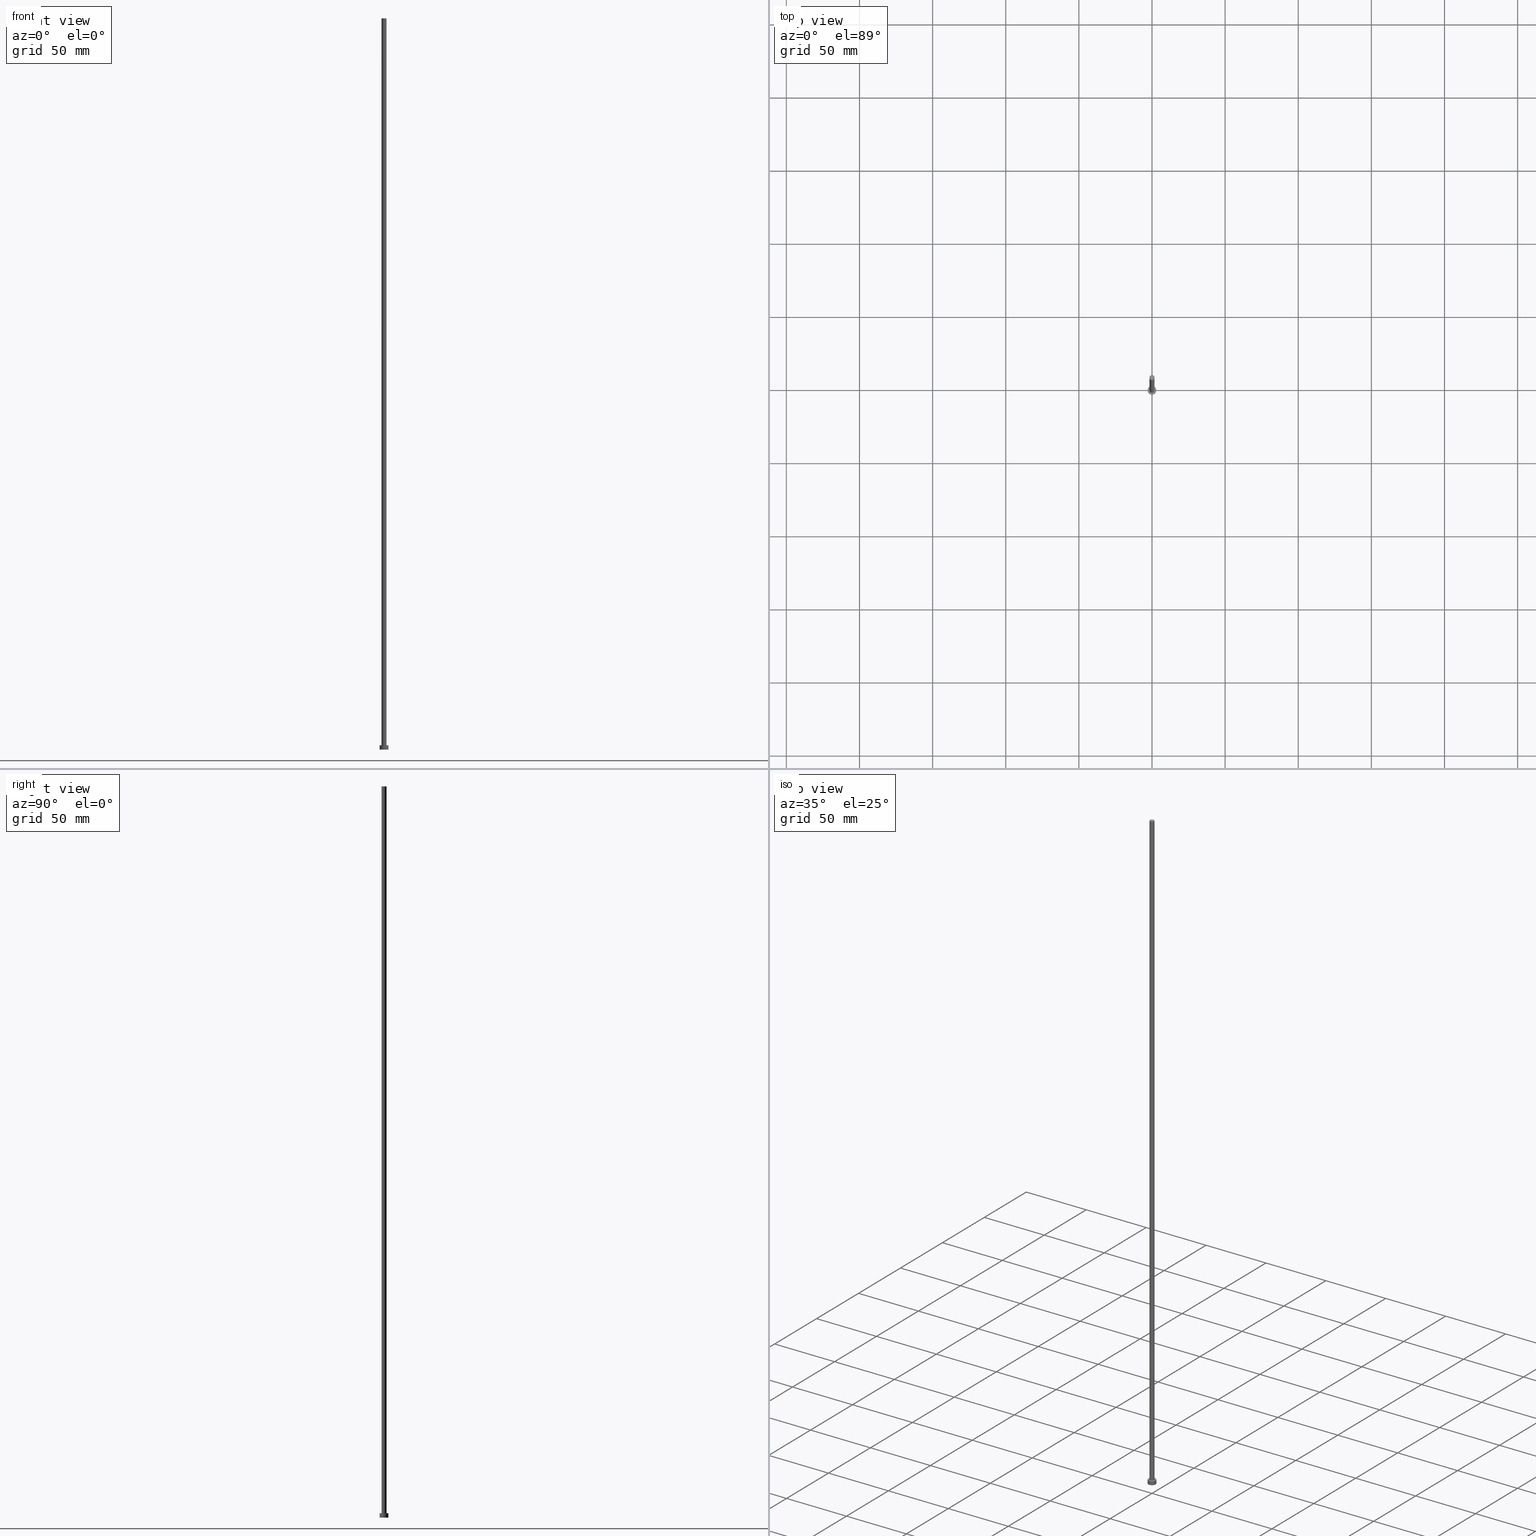
[diagram: canonical four-view strip — front | top / right | iso, engineering-drawing reading convention]
A machine part, canonical four-view strip (front | top / right | iso — engineering-drawing reading convention). The complete STEP part file that produces these views, byte-faithful:
ISO-10303-21;
HEADER;
FILE_DESCRIPTION (( 'STEP AP203' ),
    '1' );
FILE_NAME ('f785.STEP',
    '2023-02-13T16:38:28',
    ( '' ),
    ( '' ),
    'SwSTEP 2.0',
    'SolidWorks 2019',
    '' );
FILE_SCHEMA (( 'CONFIG_CONTROL_DESIGN' ));
ENDSEC;

DATA;
#1 = CIRCLE ( 'NONE', #173, 3.000000000000000444 ) ;
#2 = CARTESIAN_POINT ( 'NONE',  ( 1.750000000000000000, 2.143131898507867804E-16, 500.0000000000000000 ) ) ;
#3 = APPROVAL_ROLE ( '' ) ;
#4 = CALENDAR_DATE ( 2023, 13, 2 ) ;
#5 = PLANE ( 'NONE',  #19 ) ;
#6 = APPLICATION_PROTOCOL_DEFINITION ( 'international standard', 'config_control_design', 1994, #47 ) ;
#7 = CARTESIAN_POINT ( 'NONE',  ( -3.000000000000000444, 0.000000000000000000, 3.000000000000000000 ) ) ;
#8 = ORIENTED_EDGE ( 'NONE', *, *, #159, .T. ) ;
#9 = DIRECTION ( 'NONE',  ( 1.000000000000000000, 0.000000000000000000, -0.000000000000000000 ) ) ;
#10 =( NAMED_UNIT ( * ) SI_UNIT ( $, .STERADIAN. ) SOLID_ANGLE_UNIT ( ) );
#11 = DIRECTION ( 'NONE',  ( -0.000000000000000000, -0.000000000000000000, -1.000000000000000000 ) ) ;
#12 = SHAPE_DEFINITION_REPRESENTATION ( #148, #147 ) ;
#13 = SECURITY_CLASSIFICATION_LEVEL ( 'unclassified' ) ;
#14 = DATE_AND_TIME ( #128, #208 ) ;
#15 = DIRECTION ( 'NONE',  ( 1.000000000000000000, 0.000000000000000000, 0.000000000000000000 ) ) ;
#16 = EDGE_CURVE ( 'NONE', #37, #124, #187, .T. ) ;
#17 = VECTOR ( 'NONE', #214, 1000.000000000000000 ) ;
#18 = CIRCLE ( 'NONE', #192, 3.000000000000000444 ) ;
#19 = AXIS2_PLACEMENT_3D ( 'NONE', #79, #42, #232 ) ;
#20 = ORIENTED_EDGE ( 'NONE', *, *, #100, .F. ) ;
#21 = ORIENTED_EDGE ( 'NONE', *, *, #54, .F. ) ;
#22 = ORIENTED_EDGE ( 'NONE', *, *, #229, .F. ) ;
#23 = APPROVAL ( #101, 'NEUR�EN�' ) ;
#24 = DIRECTION ( 'NONE',  ( 0.000000000000000000, 0.000000000000000000, 1.000000000000000000 ) ) ;
#25 = ORIENTED_EDGE ( 'NONE', *, *, #113, .F. ) ;
#26 = CARTESIAN_POINT ( 'NONE',  ( 0.000000000000000000, 0.000000000000000000, 500.0000000000000000 ) ) ;
#27 = PERSON_AND_ORGANIZATION_ROLE ( 'design_supplier' ) ;
#28 = EDGE_CURVE ( 'NONE', #124, #83, #103, .T. ) ;
#29 = DIRECTION ( 'NONE',  ( 0.000000000000000000, 0.000000000000000000, 1.000000000000000000 ) ) ;
#30 = DIRECTION ( 'NONE',  ( 0.000000000000000000, 0.000000000000000000, 1.000000000000000000 ) ) ;
#31 = DIRECTION ( 'NONE',  ( 0.000000000000000000, 0.000000000000000000, 1.000000000000000000 ) ) ;
#32 = ORIENTED_EDGE ( 'NONE', *, *, #77, .F. ) ;
#33 = PERSON_AND_ORGANIZATION_ROLE ( 'design_owner' ) ;
#34 = FACE_OUTER_BOUND ( 'NONE', #238, .T. ) ;
#35 = ORIENTED_EDGE ( 'NONE', *, *, #159, .F. ) ;
#36 = CC_DESIGN_PERSON_AND_ORGANIZATION_ASSIGNMENT ( #138, #206, ( #241 ) ) ;
#37 = VERTEX_POINT ( 'NONE', #160 ) ;
#38 = CARTESIAN_POINT ( 'NONE',  ( 0.000000000000000000, 0.000000000000000000, 3.000000000000000000 ) ) ;
#39 = PERSON_AND_ORGANIZATION ( #45, #135 ) ;
#40 = VERTEX_POINT ( 'NONE', #127 ) ;
#41 = DIRECTION ( 'NONE',  ( 1.000000000000000000, 0.000000000000000000, 0.000000000000000000 ) ) ;
#42 = DIRECTION ( 'NONE',  ( 0.000000000000000000, 0.000000000000000000, 1.000000000000000000 ) ) ;
#43 = EDGE_CURVE ( 'NONE', #165, #161, #237, .T. ) ;
#44 = DIRECTION ( 'NONE',  ( 1.000000000000000000, 0.000000000000000000, 0.000000000000000000 ) ) ;
#45 = PERSON ( 'NEUR�EN�', 'NEUR�EN�', 'NEUR�EN�', ('NEUR�EN�'), ('NEUR�EN�'), ('NEUR�EN�') ) ;
#46 = DIRECTION ( 'NONE',  ( -1.000000000000000000, 0.000000000000000000, 0.000000000000000000 ) ) ;
#47 = APPLICATION_CONTEXT ( 'configuration controlled 3d designs of mechanical parts and assemblies' ) ;
#48 = LOCAL_TIME ( 17, 38, 28.00000000000000000, #120 ) ;
#49 = DIRECTION ( 'NONE',  ( 0.000000000000000000, 0.000000000000000000, 1.000000000000000000 ) ) ;
#50 = ADVANCED_FACE ( 'NONE', ( #58 ), #220, .T. ) ;
#51 = FACE_BOUND ( 'NONE', #181, .T. ) ;
#52 = CARTESIAN_POINT ( 'NONE',  ( 0.000000000000000000, 0.000000000000000000, 500.0000000000000000 ) ) ;
#53 = CALENDAR_DATE ( 2023, 13, 2 ) ;
#54 = EDGE_CURVE ( 'NONE', #143, #40, #85, .T. ) ;
#55 = AXIS2_PLACEMENT_3D ( 'NONE', #26, #60, #190 ) ;
#56 = AXIS2_PLACEMENT_3D ( 'NONE', #153, #123, #9 ) ;
#57 = ORIENTED_EDGE ( 'NONE', *, *, #43, .F. ) ;
#58 = FACE_OUTER_BOUND ( 'NONE', #224, .T. ) ;
#59 = APPROVAL_ROLE ( '' ) ;
#60 = DIRECTION ( 'NONE',  ( 0.000000000000000000, 0.000000000000000000, 1.000000000000000000 ) ) ;
#61 = AXIS2_PLACEMENT_3D ( 'NONE', #145, #63, #151 ) ;
#62 = CARTESIAN_POINT ( 'NONE',  ( -1.750000000000000000, 0.000000000000000000, 500.0000000000000000 ) ) ;
#63 = DIRECTION ( 'NONE',  ( 0.000000000000000000, 0.000000000000000000, 1.000000000000000000 ) ) ;
#64 = CARTESIAN_POINT ( 'NONE',  ( 1.750000000000000000, 2.143131898507867804E-16, 500.0000000000000000 ) ) ;
#65 = VECTOR ( 'NONE', #216, 1000.000000000000000 ) ;
#66 = CC_DESIGN_PERSON_AND_ORGANIZATION_ASSIGNMENT ( #111, #188, ( #157 ) ) ;
#67 = ADVANCED_FACE ( 'NONE', ( #51, #34 ), #212, .T. ) ;
#68 = DIRECTION ( 'NONE',  ( -0.000000000000000000, -0.000000000000000000, -1.000000000000000000 ) ) ;
#69 = CIRCLE ( 'NONE', #254, 3.000000000000000444 ) ;
#70 = UNCERTAINTY_MEASURE_WITH_UNIT (LENGTH_MEASURE( 1.000000000000000082E-05 ), #168, 'distance_accuracy_value', 'NONE');
#71 = CALENDAR_DATE ( 2023, 13, 2 ) ;
#72 = COORDINATED_UNIVERSAL_TIME_OFFSET ( 1, 0, .AHEAD. ) ;
#73 = LINE ( 'NONE', #156, #17 ) ;
#74 = LOCAL_TIME ( 17, 38, 28.00000000000000000, #72 ) ;
#75 = ORIENTED_EDGE ( 'NONE', *, *, #199, .T. ) ;
#76 = COORDINATED_UNIVERSAL_TIME_OFFSET ( 1, 0, .AHEAD. ) ;
#77 = EDGE_CURVE ( 'NONE', #170, #83, #73, .T. ) ;
#78 = DATE_AND_TIME ( #4, #132 ) ;
#79 = CARTESIAN_POINT ( 'NONE',  ( 0.000000000000000000, 0.000000000000000000, 0.000000000000000000 ) ) ;
#80 = DATE_TIME_ROLE ( 'classification_date' ) ;
#81 = EDGE_LOOP ( 'NONE', ( #22, #223, #8, #57 ) ) ;
#82 = APPROVAL_PERSON_ORGANIZATION ( #200, #118, #59 ) ;
#83 = VERTEX_POINT ( 'NONE', #218 ) ;
#84 = CARTESIAN_POINT ( 'NONE',  ( 3.000000000000000444, 3.673940397442060361E-16, 3.000000000000000000 ) ) ;
#85 = LINE ( 'NONE', #64, #253 ) ;
#86 = CC_DESIGN_PERSON_AND_ORGANIZATION_ASSIGNMENT ( #92, #33, ( #189 ) ) ;
#87 = FACE_OUTER_BOUND ( 'NONE', #149, .T. ) ;
#88 = APPROVAL_DATE_TIME ( #14, #23 ) ;
#89 = DIRECTION ( 'NONE',  ( 1.000000000000000000, 0.000000000000000000, 0.000000000000000000 ) ) ;
#90 = VECTOR ( 'NONE', #158, 1000.000000000000000 ) ;
#91 = CYLINDRICAL_SURFACE ( 'NONE', #231, 1.750000000000000000 ) ;
#92 = PERSON_AND_ORGANIZATION ( #45, #135 ) ;
#93 = CARTESIAN_POINT ( 'NONE',  ( 0.000000000000000000, 0.000000000000000000, 500.0000000000000000 ) ) ;
#94 = ORIENTED_EDGE ( 'NONE', *, *, #43, .T. ) ;
#95 = CARTESIAN_POINT ( 'NONE',  ( -3.000000000000000444, 0.000000000000000000, 0.000000000000000000 ) ) ;
#96 = CIRCLE ( 'NONE', #55, 1.750000000000000000 ) ;
#97 = AXIS2_PLACEMENT_3D ( 'NONE', #93, #30, #44 ) ;
#98 = APPLICATION_PROTOCOL_DEFINITION ( 'international standard', 'config_control_design', 1994, #197 ) ;
#99 = PERSON_AND_ORGANIZATION ( #45, #135 ) ;
#100 = EDGE_CURVE ( 'NONE', #37, #170, #1, .T. ) ;
#101 = APPROVAL_STATUS ( 'not_yet_approved' ) ;
#102 = ORIENTED_EDGE ( 'NONE', *, *, #199, .F. ) ;
#103 = CIRCLE ( 'NONE', #114, 3.000000000000000444 ) ;
#104 = EDGE_CURVE ( 'NONE', #165, #143, #96, .T. ) ;
#105 = DIRECTION ( 'NONE',  ( 0.000000000000000000, 0.000000000000000000, 1.000000000000000000 ) ) ;
#106 = CARTESIAN_POINT ( 'NONE',  ( -1.750000000000000000, 0.000000000000000000, 3.000000000000000000 ) ) ;
#107 = CARTESIAN_POINT ( 'NONE',  ( 0.000000000000000000, 0.000000000000000000, 0.000000000000000000 ) ) ;
#108 = APPROVAL_ROLE ( '' ) ;
#109 = APPROVAL ( #180, 'NEUR�EN�' ) ;
#110 = CARTESIAN_POINT ( 'NONE',  ( 0.000000000000000000, 0.000000000000000000, 3.000000000000000000 ) ) ;
#111 = PERSON_AND_ORGANIZATION ( #45, #135 ) ;
#112 = CARTESIAN_POINT ( 'NONE',  ( 0.000000000000000000, 0.000000000000000000, 3.000000000000000000 ) ) ;
#113 = EDGE_CURVE ( 'NONE', #161, #40, #207, .T. ) ;
#114 = AXIS2_PLACEMENT_3D ( 'NONE', #107, #226, #41 ) ;
#115 = MECHANICAL_CONTEXT ( 'NONE', #47, 'mechanical' ) ;
#116 = CC_DESIGN_DATE_AND_TIME_ASSIGNMENT ( #137, #140, ( #228 ) ) ;
#117 = AXIS2_PLACEMENT_3D ( 'NONE', #110, #24, #126 ) ;
#118 = APPROVAL ( #122, 'NEUR�EN�' ) ;
#119 = PERSON_AND_ORGANIZATION ( #45, #135 ) ;
#120 = COORDINATED_UNIVERSAL_TIME_OFFSET ( 1, 0, .AHEAD. ) ;
#121 = ORIENTED_EDGE ( 'NONE', *, *, #113, .T. ) ;
#122 = APPROVAL_STATUS ( 'not_yet_approved' ) ;
#123 = DIRECTION ( 'NONE',  ( 0.000000000000000000, 0.000000000000000000, 1.000000000000000000 ) ) ;
#124 = VERTEX_POINT ( 'NONE', #95 ) ;
#125 = AXIS2_PLACEMENT_3D ( 'NONE', #141, #31, #176 ) ;
#126 = DIRECTION ( 'NONE',  ( 1.000000000000000000, 0.000000000000000000, 0.000000000000000000 ) ) ;
#127 = CARTESIAN_POINT ( 'NONE',  ( 1.750000000000000000, 2.143131898507867804E-16, 3.000000000000000000 ) ) ;
#128 = CALENDAR_DATE ( 2023, 13, 2 ) ;
#129 = CC_DESIGN_APPROVAL ( #109, ( #241 ) ) ;
#130 = COORDINATED_UNIVERSAL_TIME_OFFSET ( 1, 0, .AHEAD. ) ;
#131 = ADVANCED_FACE ( 'NONE', ( #202 ), #215, .T. ) ;
#132 = LOCAL_TIME ( 17, 38, 28.00000000000000000, #76 ) ;
#133 = AXIS2_PLACEMENT_3D ( 'NONE', #210, #49, #233 ) ;
#134 =( GEOMETRIC_REPRESENTATION_CONTEXT ( 3 ) GLOBAL_UNCERTAINTY_ASSIGNED_CONTEXT ( ( #70 ) ) GLOBAL_UNIT_ASSIGNED_CONTEXT ( ( #168, #227, #10 ) ) REPRESENTATION_CONTEXT ( 'NONE', 'WORKASPACE' ) );
#135 = ORGANIZATION ( 'NEUR�EN�', 'NEUR�EN�', '' ) ;
#136 = DIRECTION ( 'NONE',  ( -1.000000000000000000, 0.000000000000000000, 0.000000000000000000 ) ) ;
#137 = DATE_AND_TIME ( #53, #74 ) ;
#138 = PERSON_AND_ORGANIZATION ( #45, #135 ) ;
#139 = EDGE_LOOP ( 'NONE', ( #183, #244 ) ) ;
#140 = DATE_TIME_ROLE ( 'creation_date' ) ;
#141 = CARTESIAN_POINT ( 'NONE',  ( 0.000000000000000000, 0.000000000000000000, 3.000000000000000000 ) ) ;
#142 = ORIENTED_EDGE ( 'NONE', *, *, #16, .F. ) ;
#143 = VERTEX_POINT ( 'NONE', #2 ) ;
#144 = ORIENTED_EDGE ( 'NONE', *, *, #100, .T. ) ;
#145 = CARTESIAN_POINT ( 'NONE',  ( 0.000000000000000000, 0.000000000000000000, 0.000000000000000000 ) ) ;
#146 = EDGE_LOOP ( 'NONE', ( #21, #242, #94, #121 ) ) ;
#147 = ADVANCED_BREP_SHAPE_REPRESENTATION ( 'f785', ( #155, #61 ), #134 ) ;
#148 = PRODUCT_DEFINITION_SHAPE ( 'NONE', 'NONE',  #228 ) ;
#149 = EDGE_LOOP ( 'NONE', ( #102, #239, #203, #142 ) ) ;
#150 = FACE_OUTER_BOUND ( 'NONE', #182, .T. ) ;
#151 = DIRECTION ( 'NONE',  ( 1.000000000000000000, 0.000000000000000000, 0.000000000000000000 ) ) ;
#152 = EDGE_CURVE ( 'NONE', #83, #124, #18, .T. ) ;
#153 = CARTESIAN_POINT ( 'NONE',  ( 0.000000000000000000, 0.000000000000000000, 500.0000000000000000 ) ) ;
#154 = CIRCLE ( 'NONE', #97, 1.750000000000000000 ) ;
#155 = MANIFOLD_SOLID_BREP ( 'P�idat vysunut�m3', #248 ) ;
#156 = CARTESIAN_POINT ( 'NONE',  ( 3.000000000000000444, 3.673940397442060361E-16, 3.000000000000000000 ) ) ;
#157 = SECURITY_CLASSIFICATION ( '', '', #13 ) ;
#158 = DIRECTION ( 'NONE',  ( -0.000000000000000000, -0.000000000000000000, -1.000000000000000000 ) ) ;
#159 = EDGE_CURVE ( 'NONE', #40, #161, #250, .T. ) ;
#160 = CARTESIAN_POINT ( 'NONE',  ( -3.000000000000000444, 0.000000000000000000, 3.000000000000000000 ) ) ;
#161 = VERTEX_POINT ( 'NONE', #106 ) ;
#162 = ADVANCED_FACE ( 'NONE', ( #251 ), #186, .T. ) ;
#163 = APPROVAL_DATE_TIME ( #78, #109 ) ;
#164 = APPROVAL_PERSON_ORGANIZATION ( #39, #23, #108 ) ;
#165 = VERTEX_POINT ( 'NONE', #62 ) ;
#166 = ORIENTED_EDGE ( 'NONE', *, *, #16, .T. ) ;
#167 = DIRECTION ( 'NONE',  ( -1.000000000000000000, 0.000000000000000000, 0.000000000000000000 ) ) ;
#168 =( LENGTH_UNIT ( ) NAMED_UNIT ( * ) SI_UNIT ( .MILLI., .METRE. ) );
#169 = LOCAL_TIME ( 17, 38, 28.00000000000000000, #177 ) ;
#170 = VERTEX_POINT ( 'NONE', #84 ) ;
#171 = ORIENTED_EDGE ( 'NONE', *, *, #152, .F. ) ;
#172 = CARTESIAN_POINT ( 'NONE',  ( 0.000000000000000000, 0.000000000000000000, 500.0000000000000000 ) ) ;
#173 = AXIS2_PLACEMENT_3D ( 'NONE', #243, #105, #245 ) ;
#174 = PERSON_AND_ORGANIZATION ( #45, #135 ) ;
#175 = DESIGN_CONTEXT ( 'detailed design', #197, 'design' ) ;
#176 = DIRECTION ( 'NONE',  ( 1.000000000000000000, 0.000000000000000000, -0.000000000000000000 ) ) ;
#177 = COORDINATED_UNIVERSAL_TIME_OFFSET ( 1, 0, .AHEAD. ) ;
#178 = CC_DESIGN_PERSON_AND_ORGANIZATION_ASSIGNMENT ( #174, #27, ( #241 ) ) ;
#179 = CC_DESIGN_APPROVAL ( #23, ( #157 ) ) ;
#180 = APPROVAL_STATUS ( 'not_yet_approved' ) ;
#181 = EDGE_LOOP ( 'NONE', ( #25, #35 ) ) ;
#182 = EDGE_LOOP ( 'NONE', ( #185, #171 ) ) ;
#183 = ORIENTED_EDGE ( 'NONE', *, *, #104, .T. ) ;
#184 = DIRECTION ( 'NONE',  ( -0.000000000000000000, -0.000000000000000000, -1.000000000000000000 ) ) ;
#185 = ORIENTED_EDGE ( 'NONE', *, *, #28, .F. ) ;
#186 = PLANE ( 'NONE',  #56 ) ;
#187 = LINE ( 'NONE', #7, #65 ) ;
#188 = PERSON_AND_ORGANIZATION_ROLE ( 'classification_officer' ) ;
#189 = PRODUCT ( 'f785', 'f785', '', ( #115 ) ) ;
#190 = DIRECTION ( 'NONE',  ( 1.000000000000000000, 0.000000000000000000, 0.000000000000000000 ) ) ;
#191 = ADVANCED_FACE ( 'NONE', ( #150 ), #5, .F. ) ;
#192 = AXIS2_PLACEMENT_3D ( 'NONE', #205, #225, #15 ) ;
#193 = APPROVAL_PERSON_ORGANIZATION ( #99, #109, #3 ) ;
#194 = CARTESIAN_POINT ( 'NONE',  ( 0.000000000000000000, 0.000000000000000000, 3.000000000000000000 ) ) ;
#195 = CC_DESIGN_PERSON_AND_ORGANIZATION_ASSIGNMENT ( #119, #217, ( #228 ) ) ;
#196 = DIRECTION ( 'NONE',  ( -0.000000000000000000, -0.000000000000000000, -1.000000000000000000 ) ) ;
#197 = APPLICATION_CONTEXT ( 'configuration controlled 3d designs of mechanical parts and assemblies' ) ;
#198 = AXIS2_PLACEMENT_3D ( 'NONE', #112, #184, #249 ) ;
#199 = EDGE_CURVE ( 'NONE', #170, #37, #69, .T. ) ;
#200 = PERSON_AND_ORGANIZATION ( #45, #135 ) ;
#201 = PRODUCT_RELATED_PRODUCT_CATEGORY ( 'detail', '', ( #189 ) ) ;
#202 = FACE_OUTER_BOUND ( 'NONE', #146, .T. ) ;
#203 = ORIENTED_EDGE ( 'NONE', *, *, #152, .T. ) ;
#204 = CC_DESIGN_SECURITY_CLASSIFICATION ( #157, ( #241 ) ) ;
#205 = CARTESIAN_POINT ( 'NONE',  ( 0.000000000000000000, 0.000000000000000000, 0.000000000000000000 ) ) ;
#206 = PERSON_AND_ORGANIZATION_ROLE ( 'creator' ) ;
#207 = CIRCLE ( 'NONE', #133, 1.750000000000000000 ) ;
#208 = LOCAL_TIME ( 17, 38, 28.00000000000000000, #130 ) ;
#209 = CARTESIAN_POINT ( 'NONE',  ( -1.750000000000000000, 0.000000000000000000, 500.0000000000000000 ) ) ;
#210 = CARTESIAN_POINT ( 'NONE',  ( 0.000000000000000000, 0.000000000000000000, 3.000000000000000000 ) ) ;
#211 = CC_DESIGN_DATE_AND_TIME_ASSIGNMENT ( #221, #80, ( #157 ) ) ;
#212 = PLANE ( 'NONE',  #125 ) ;
#213 = CC_DESIGN_APPROVAL ( #118, ( #228 ) ) ;
#214 = DIRECTION ( 'NONE',  ( -0.000000000000000000, -0.000000000000000000, -1.000000000000000000 ) ) ;
#215 = CYLINDRICAL_SURFACE ( 'NONE', #230, 1.750000000000000000 ) ;
#216 = DIRECTION ( 'NONE',  ( -0.000000000000000000, -0.000000000000000000, -1.000000000000000000 ) ) ;
#217 = PERSON_AND_ORGANIZATION_ROLE ( 'creator' ) ;
#218 = CARTESIAN_POINT ( 'NONE',  ( 3.000000000000000444, 3.673940397442060361E-16, 0.000000000000000000 ) ) ;
#219 = ORIENTED_EDGE ( 'NONE', *, *, #28, .T. ) ;
#220 = CYLINDRICAL_SURFACE ( 'NONE', #234, 3.000000000000000444 ) ;
#221 = DATE_AND_TIME ( #71, #48 ) ;
#222 = CYLINDRICAL_SURFACE ( 'NONE', #198, 3.000000000000000444 ) ;
#223 = ORIENTED_EDGE ( 'NONE', *, *, #54, .T. ) ;
#224 = EDGE_LOOP ( 'NONE', ( #32, #20, #166, #219 ) ) ;
#225 = DIRECTION ( 'NONE',  ( 0.000000000000000000, 0.000000000000000000, 1.000000000000000000 ) ) ;
#226 = DIRECTION ( 'NONE',  ( 0.000000000000000000, 0.000000000000000000, 1.000000000000000000 ) ) ;
#227 =( NAMED_UNIT ( * ) PLANE_ANGLE_UNIT ( ) SI_UNIT ( $, .RADIAN. ) );
#228 = PRODUCT_DEFINITION ( 'NEZN�M�', '', #241, #175 ) ;
#229 = EDGE_CURVE ( 'NONE', #143, #165, #154, .T. ) ;
#230 = AXIS2_PLACEMENT_3D ( 'NONE', #52, #196, #136 ) ;
#231 = AXIS2_PLACEMENT_3D ( 'NONE', #172, #68, #46 ) ;
#232 = DIRECTION ( 'NONE',  ( 1.000000000000000000, 0.000000000000000000, -0.000000000000000000 ) ) ;
#233 = DIRECTION ( 'NONE',  ( 1.000000000000000000, 0.000000000000000000, 0.000000000000000000 ) ) ;
#234 = AXIS2_PLACEMENT_3D ( 'NONE', #38, #11, #167 ) ;
#235 = CALENDAR_DATE ( 2023, 13, 2 ) ;
#236 = DATE_AND_TIME ( #235, #169 ) ;
#237 = LINE ( 'NONE', #209, #90 ) ;
#238 = EDGE_LOOP ( 'NONE', ( #144, #75 ) ) ;
#239 = ORIENTED_EDGE ( 'NONE', *, *, #77, .T. ) ;
#240 = ADVANCED_FACE ( 'NONE', ( #252 ), #91, .T. ) ;
#241 = PRODUCT_DEFINITION_FORMATION_WITH_SPECIFIED_SOURCE ( 'LIBOVOLN�', '', #189, .NOT_KNOWN. ) ;
#242 = ORIENTED_EDGE ( 'NONE', *, *, #104, .F. ) ;
#243 = CARTESIAN_POINT ( 'NONE',  ( 0.000000000000000000, 0.000000000000000000, 3.000000000000000000 ) ) ;
#244 = ORIENTED_EDGE ( 'NONE', *, *, #229, .T. ) ;
#245 = DIRECTION ( 'NONE',  ( 1.000000000000000000, 0.000000000000000000, 0.000000000000000000 ) ) ;
#246 = ADVANCED_FACE ( 'NONE', ( #87 ), #222, .T. ) ;
#247 = DIRECTION ( 'NONE',  ( -0.000000000000000000, -0.000000000000000000, -1.000000000000000000 ) ) ;
#248 = CLOSED_SHELL ( 'NONE', ( #240, #246, #50, #67, #191, #131, #162 ) ) ;
#249 = DIRECTION ( 'NONE',  ( -1.000000000000000000, 0.000000000000000000, 0.000000000000000000 ) ) ;
#250 = CIRCLE ( 'NONE', #117, 1.750000000000000000 ) ;
#251 = FACE_OUTER_BOUND ( 'NONE', #139, .T. ) ;
#252 = FACE_OUTER_BOUND ( 'NONE', #81, .T. ) ;
#253 = VECTOR ( 'NONE', #247, 1000.000000000000000 ) ;
#254 = AXIS2_PLACEMENT_3D ( 'NONE', #194, #29, #89 ) ;
#255 = APPROVAL_DATE_TIME ( #236, #118 ) ;
ENDSEC;
END-ISO-10303-21;
